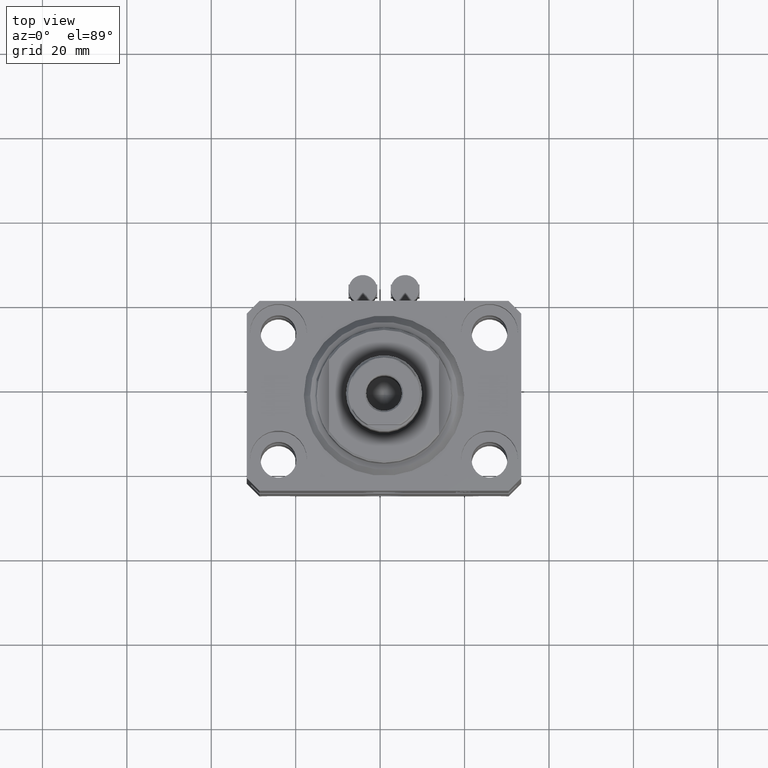
[diagram: clean part render]
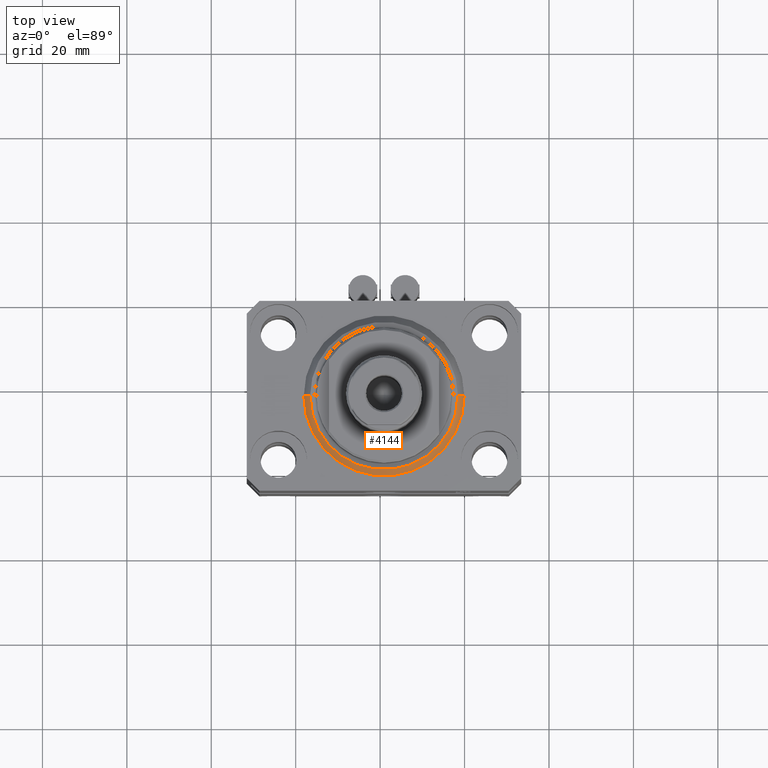
[diagram: same view with one face highlighted and labeled with its STEP entity id]
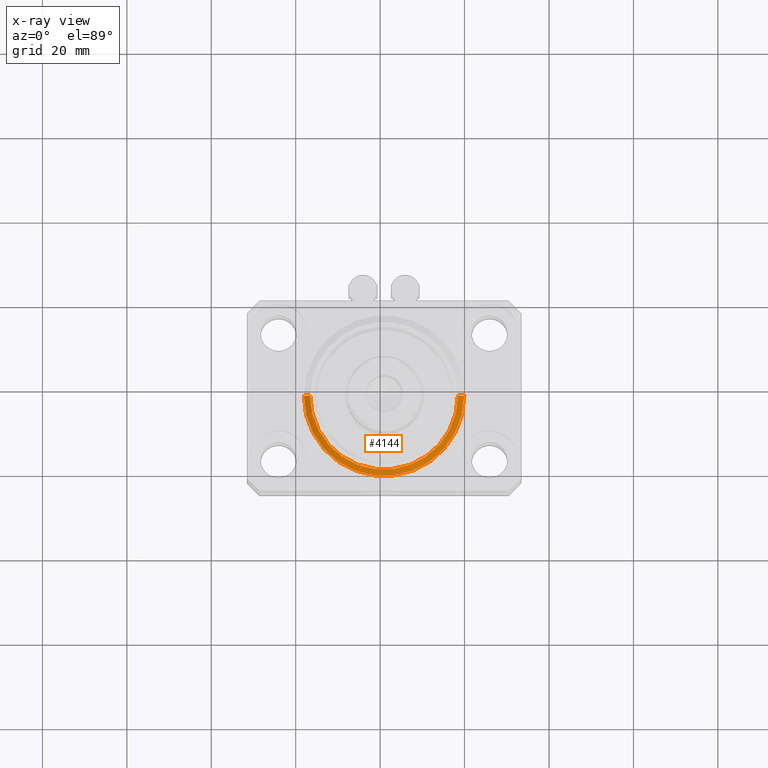
[diagram: x-ray of the same camera — body ghosted, the highlighted face saturated]
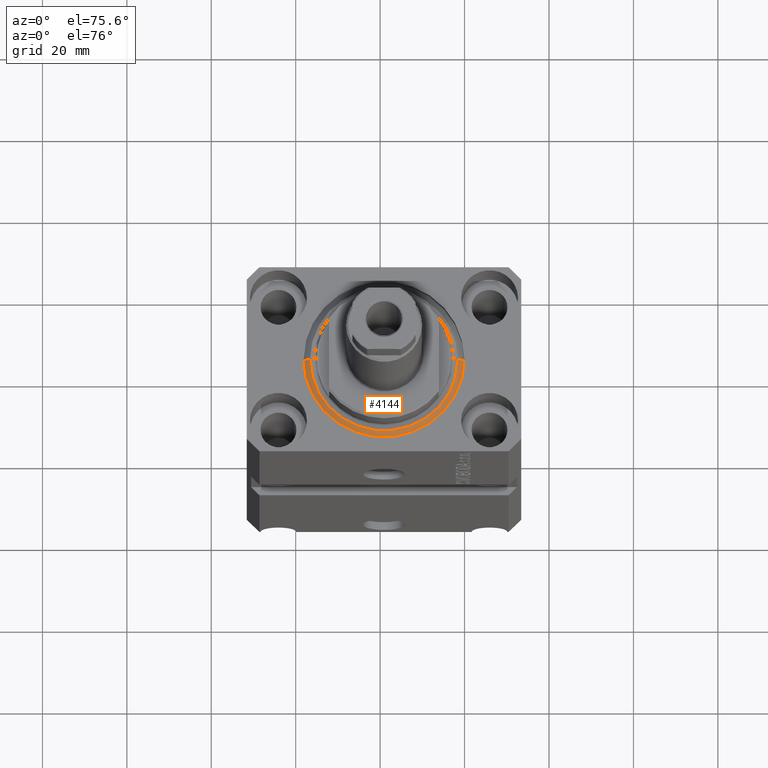
[diagram: same view with one face highlighted and labeled with its STEP entity id]
A machine part, top view. The second image highlights one B-rep face of the part: STEP entity #4144.
The next image is the same camera in x-ray: the body ghosted, the highlighted face saturated — about 0% of this face is hidden behind the body in this view.
A second angle (auxiliary view) of the same face is appended — the face is thin or edge-on in the first view.
In plain terms, the highlighted conical surface has half-angle 45 deg.
Its self-contained STEP definition (entity closure, byte-faithful):
#208 = AXIS2_PLACEMENT_3D ( 'NONE', #40612, #9194, #1652 ) ;
#1652 = DIRECTION ( 'NONE',  ( 1.000000000000000000, 0.000000000000000000, 0.000000000000000000 ) ) ;
#2251 = VERTEX_POINT ( 'NONE', #18875 ) ;
#2830 = CARTESIAN_POINT ( 'NONE',  ( 17.49999999999999645, 0.000000000000000000, 0.000000000000000000 ) ) ;
#4144 = ADVANCED_FACE ( 'NONE', ( #27770 ), #45030, .T. ) ;
#4984 = VECTOR ( 'NONE', #23253, 1000.000000000000000 ) ;
#5591 = DIRECTION ( 'NONE',  ( -0.7071067811865483499, 8.659560562354942719E-17, 0.7071067811865467956 ) ) ;
#6247 = ORIENTED_EDGE ( 'NONE', *, *, #27723, .T. ) ;
#6554 = DIRECTION ( 'NONE',  ( 1.000000000000000000, 0.000000000000000000, 0.000000000000000000 ) ) ;
#7431 = EDGE_CURVE ( 'NONE', #39312, #2251, #41429, .T. ) ;
#8291 = ORIENTED_EDGE ( 'NONE', *, *, #22898, .F. ) ;
#9194 = DIRECTION ( 'NONE',  ( -0.000000000000000000, -0.000000000000000000, 1.000000000000000000 ) ) ;
#9494 = CARTESIAN_POINT ( 'NONE',  ( -19.00000000000000000, 0.000000000000000000, 1.500000000000001332 ) ) ;
#12319 = CARTESIAN_POINT ( 'NONE',  ( 19.00000000000000000, 2.326828918379970970E-15, 1.500000000000001332 ) ) ;
#12479 = CARTESIAN_POINT ( 'NONE',  ( 19.00000000000000000, 0.000000000000000000, 1.500000000000001332 ) ) ;
#12861 = VERTEX_POINT ( 'NONE', #12319 ) ;
#15694 = LINE ( 'NONE', #30128, #18060 ) ;
#16489 = VERTEX_POINT ( 'NONE', #9494 ) ;
#16549 = AXIS2_PLACEMENT_3D ( 'NONE', #16879, #27410, #6554 ) ;
#16879 = CARTESIAN_POINT ( 'NONE',  ( 0.000000000000000000, 0.000000000000000000, 0.000000000000000000 ) ) ;
#18060 = VECTOR ( 'NONE', #5591, 1000.000000000000000 ) ;
#18875 = CARTESIAN_POINT ( 'NONE',  ( -17.49999999999999645, 2.234980408443919215E-15, 0.000000000000000000 ) ) ;
#22898 = EDGE_CURVE ( 'NONE', #2251, #16489, #15694, .T. ) ;
#23253 = DIRECTION ( 'NONE',  ( 0.7071067811865483499, 0.000000000000000000, 0.7071067811865467956 ) ) ;
#24106 = DIRECTION ( 'NONE',  ( 1.000000000000000000, 0.000000000000000000, 0.000000000000000000 ) ) ;
#25273 = ORIENTED_EDGE ( 'NONE', *, *, #7431, .F. ) ;
#27410 = DIRECTION ( 'NONE',  ( -0.000000000000000000, -0.000000000000000000, -1.000000000000000000 ) ) ;
#27723 = EDGE_CURVE ( 'NONE', #39312, #12861, #43876, .T. ) ;
#27770 = FACE_OUTER_BOUND ( 'NONE', #32127, .T. ) ;
#28776 = CIRCLE ( 'NONE', #208, 19.00000000000000000 ) ;
#30128 = CARTESIAN_POINT ( 'NONE',  ( -19.00000000000000000, 2.326828918379970970E-15, 1.500000000000001332 ) ) ;
#31146 = AXIS2_PLACEMENT_3D ( 'NONE', #45182, #31454, #24106 ) ;
#31454 = DIRECTION ( 'NONE',  ( -0.000000000000000000, -0.000000000000000000, 1.000000000000000000 ) ) ;
#32127 = EDGE_LOOP ( 'NONE', ( #8291, #25273, #6247, #39621 ) ) ;
#39312 = VERTEX_POINT ( 'NONE', #2830 ) ;
#39621 = ORIENTED_EDGE ( 'NONE', *, *, #43813, .F. ) ;
#40612 = CARTESIAN_POINT ( 'NONE',  ( 0.000000000000000000, 0.000000000000000000, 1.500000000000001332 ) ) ;
#41429 = CIRCLE ( 'NONE', #16549, 17.49999999999999645 ) ;
#43813 = EDGE_CURVE ( 'NONE', #16489, #12861, #28776, .T. ) ;
#43876 = LINE ( 'NONE', #12479, #4984 ) ;
#45030 = CONICAL_SURFACE ( 'NONE', #31146, 19.00000000000000000, 0.7853981633974492782 ) ;
#45182 = CARTESIAN_POINT ( 'NONE',  ( 0.000000000000000000, 0.000000000000000000, 1.500000000000001332 ) ) ;